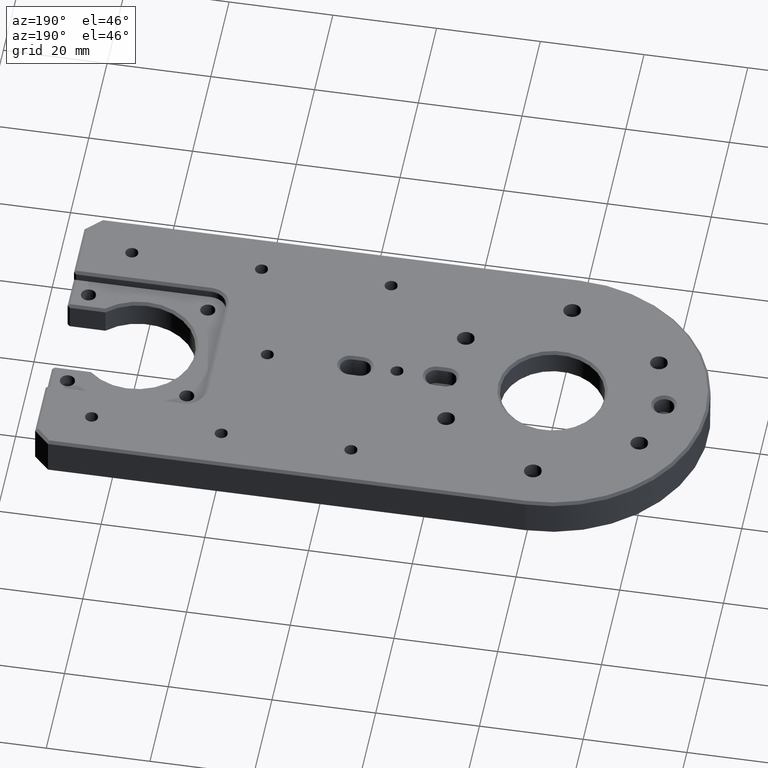
[diagram: clean part render]
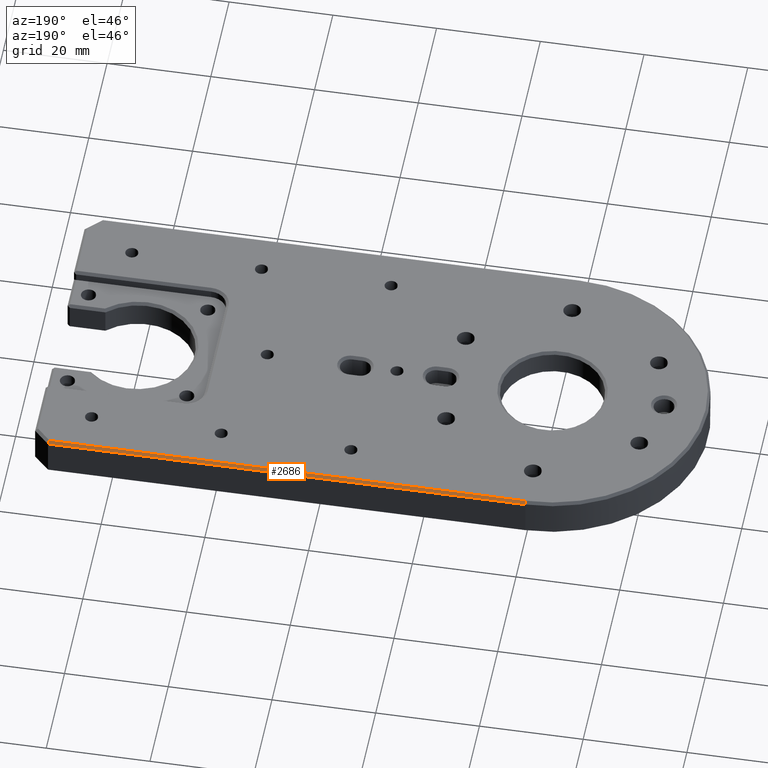
[diagram: same view with one face highlighted and labeled with its STEP entity id]
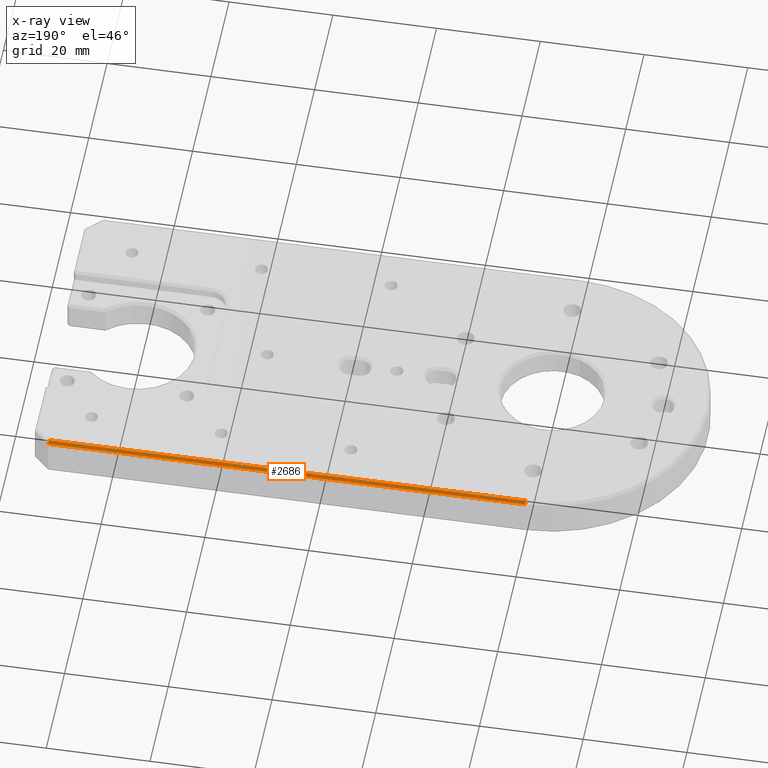
[diagram: x-ray of the same camera — body ghosted, the highlighted face saturated]
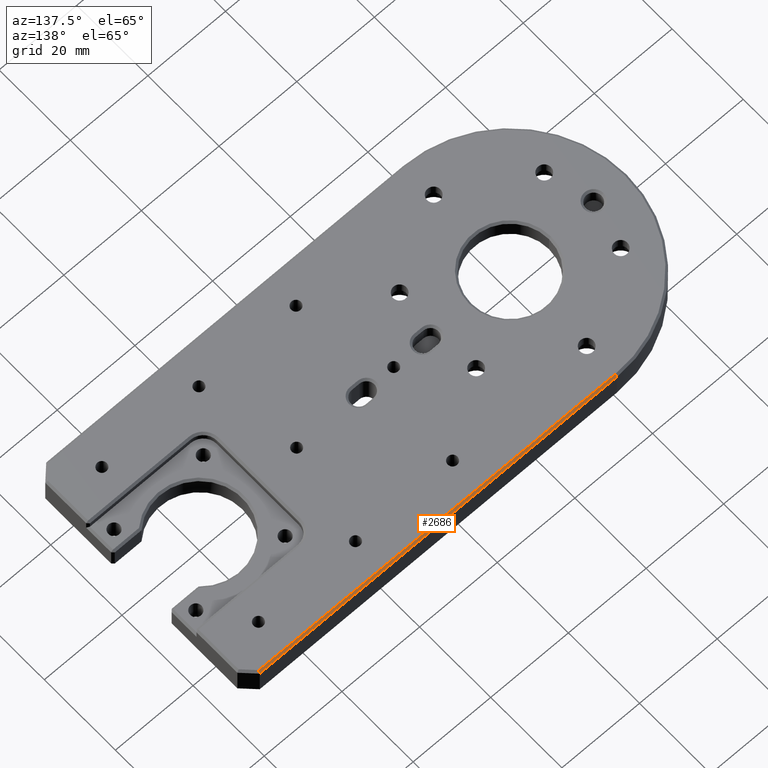
[diagram: same view with one face highlighted and labeled with its STEP entity id]
A machine part, auxiliary view. The second image highlights one B-rep face of the part: STEP entity #2686.
The next image is the same camera in x-ray: the body ghosted, the highlighted face saturated — about 0% of this face is hidden behind the body in this view.
A second angle (auxiliary view) of the same face is appended — the face is thin or edge-on in the first view.
In plain terms, the highlighted planar face has unit normal (-0, -0.7071, -0.7071).
Its self-contained STEP definition (entity closure, byte-faithful):
#97 = LINE ( 'NONE', #459, #743 ) ;
#150 = DIRECTION ( 'NONE',  ( 1.000000000000000000, 0.0000000000000000000, 0.0000000000000000000 ) ) ;
#255 = CARTESIAN_POINT ( 'NONE',  ( 1.836970198721029589E-15, 30.00000000000000000, -0.4999999999999866773 ) ) ;
#266 = DIRECTION ( 'NONE',  ( -1.000000000000000000, 0.0000000000000000000, 0.0000000000000000000 ) ) ;
#378 = EDGE_CURVE ( 'NONE', #1419, #1153, #2059, .T. ) ;
#411 = CARTESIAN_POINT ( 'NONE',  ( 1.836970198721029589E-15, 30.00000000000000000, -0.4999999999999865663 ) ) ;
#459 = CARTESIAN_POINT ( 'NONE',  ( 1.836970198721029589E-15, 30.00000000000000000, -0.4999999999999865663 ) ) ;
#648 = DIRECTION ( 'NONE',  ( -0.0000000000000000000, -0.7071067811865378028, -0.7071067811865573427 ) ) ;
#731 = VERTEX_POINT ( 'NONE', #3575 ) ;
#743 = VECTOR ( 'NONE', #150, 1000.000000000000000 ) ;
#781 = VECTOR ( 'NONE', #1415, 1000.000000000000227 ) ;
#1153 = VERTEX_POINT ( 'NONE', #4350 ) ;
#1212 = ORIENTED_EDGE ( 'NONE', *, *, #1735, .F. ) ;
#1415 = DIRECTION ( 'NONE',  ( -0.2810846377147433461, -0.6785983445458723118, 0.6785983445458535490 ) ) ;
#1419 = VERTEX_POINT ( 'NONE', #3579 ) ;
#1614 = DIRECTION ( 'NONE',  ( -4.329780281177513268E-17, -0.7071067811865573427, 0.7071067811865378028 ) ) ;
#1625 = EDGE_CURVE ( 'NONE', #3831, #1153, #3296, .T. ) ;
#1735 = EDGE_CURVE ( 'NONE', #731, #1419, #4121, .T. ) ;
#2059 = LINE ( 'NONE', #4410, #2352 ) ;
#2254 = ORIENTED_EDGE ( 'NONE', *, *, #378, .F. ) ;
#2336 = PLANE ( 'NONE',  #4115 ) ;
#2352 = VECTOR ( 'NONE', #3412, 1000.000000000000000 ) ;
#2555 = EDGE_LOOP ( 'NONE', ( #3728, #2254, #1212, #2818 ) ) ;
#2622 = CARTESIAN_POINT ( 'NONE',  ( 0.0000000000000000000, 29.50000000000000000, 0.0000000000000000000 ) ) ;
#2686 = ADVANCED_FACE ( 'NONE', ( #3000 ), #2336, .F. ) ;
#2818 = ORIENTED_EDGE ( 'NONE', *, *, #3569, .F. ) ;
#3000 = FACE_OUTER_BOUND ( 'NONE', #2555, .T. ) ;
#3296 = LINE ( 'NONE', #255, #4290 ) ;
#3412 = DIRECTION ( 'NONE',  ( -1.000000000000000000, 0.0000000000000000000, 0.0000000000000000000 ) ) ;
#3569 = EDGE_CURVE ( 'NONE', #3831, #731, #97, .T. ) ;
#3575 = CARTESIAN_POINT ( 'NONE',  ( 92.00000000000005684, 30.00000000000000000, -0.4999999999999970024 ) ) ;
#3579 = CARTESIAN_POINT ( 'NONE',  ( 91.79289321881354624, 29.50000000000000355, 0.0000000000000000000 ) ) ;
#3728 = ORIENTED_EDGE ( 'NONE', *, *, #1625, .T. ) ;
#3831 = VERTEX_POINT ( 'NONE', #411 ) ;
#4096 = CARTESIAN_POINT ( 'NONE',  ( 95.27304131457900382, 37.90182073186646505, -8.401820731866237679 ) ) ;
#4115 = AXIS2_PLACEMENT_3D ( 'NONE', #2622, #648, #266 ) ;
#4121 = LINE ( 'NONE', #4096, #781 ) ;
#4290 = VECTOR ( 'NONE', #1614, 999.9999999999998863 ) ;
#4350 = CARTESIAN_POINT ( 'NONE',  ( 1.806354028742345802E-15, 29.50000000000000000, 0.0000000000000000000 ) ) ;
#4410 = CARTESIAN_POINT ( 'NONE',  ( 0.0000000000000000000, 29.50000000000000000, 0.0000000000000000000 ) ) ;